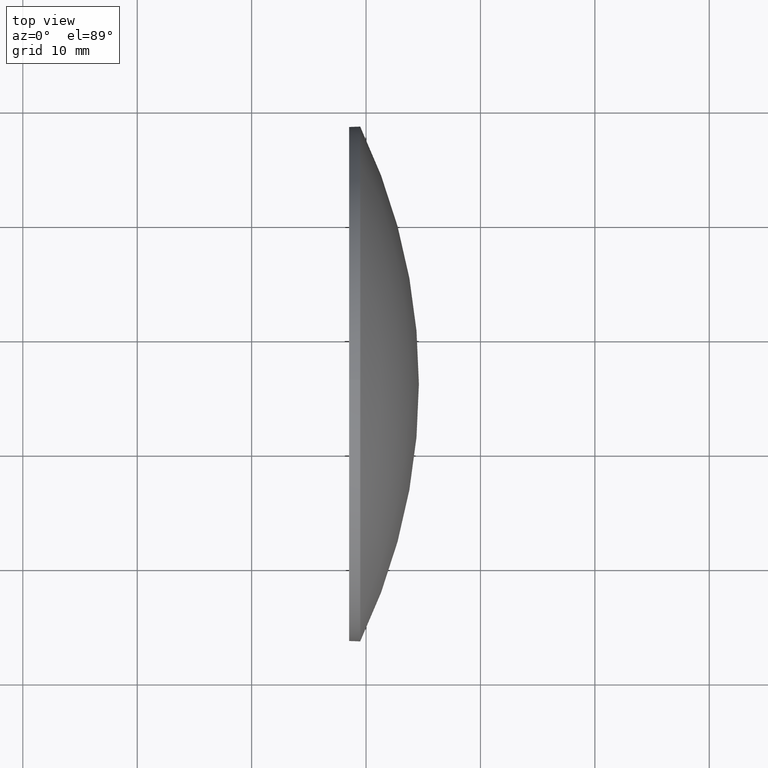
[diagram: clean part render]
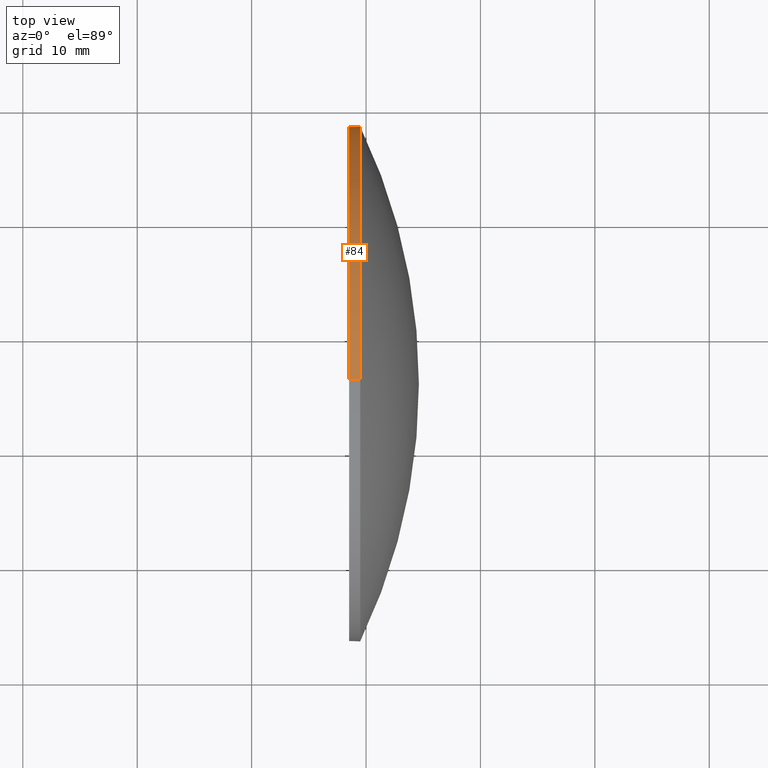
[diagram: same view with one face highlighted and labeled with its STEP entity id]
A machine part, top view. The second image highlights one B-rep face of the part: STEP entity #84.
In plain terms, the highlighted cylindrical surface (partial cylindrical patch) has radius 22.5 mm, axis along (-1, -0, -0).
Its self-contained STEP definition (entity closure, byte-faithful):
#2 = CARTESIAN_POINT ( 'NONE',  ( 548.5191482803511500, 55.90797584289919100, 0.0000000000000000000 ) ) ;
#3 = LINE ( 'NONE', #85, #114 ) ;
#4 = DIRECTION ( 'NONE',  ( -1.000000000000000000, -0.0000000000000000000, -0.0000000000000000000 ) ) ;
#5 = DIRECTION ( 'NONE',  ( 0.0000000000000000000, 0.0000000000000000000, 1.000000000000000000 ) ) ;
#7 = CARTESIAN_POINT ( 'NONE',  ( 548.5191482803511500, 55.90797584289919100, 22.49999999999999300 ) ) ;
#17 = CARTESIAN_POINT ( 'NONE',  ( 543.8709406530288100, 55.90797584289919100, 22.49999999999999300 ) ) ;
#21 = CARTESIAN_POINT ( 'NONE',  ( 549.4891482803511700, 55.90797584289919100, 22.49999999999999300 ) ) ;
#23 = EDGE_LOOP ( 'NONE', ( #69, #163, #118, #72, #135 ) ) ;
#28 = VERTEX_POINT ( 'NONE', #127 ) ;
#36 = CARTESIAN_POINT ( 'NONE',  ( 548.5191482803511500, 55.90797584289919100, -22.49999999999999300 ) ) ;
#46 = CYLINDRICAL_SURFACE ( 'NONE', #107, 22.49999999999999300 ) ;
#53 = DIRECTION ( 'NONE',  ( 0.0000000000000000000, 0.0000000000000000000, 1.000000000000000000 ) ) ;
#58 = EDGE_CURVE ( 'NONE', #28, #71, #3, .T. ) ;
#61 = FACE_OUTER_BOUND ( 'NONE', #23, .T. ) ;
#62 = DIRECTION ( 'NONE',  ( -1.000000000000000000, -0.0000000000000000000, -0.0000000000000000000 ) ) ;
#65 = CARTESIAN_POINT ( 'NONE',  ( 549.4891482803511700, 55.90797584289919100, 0.0000000000000000000 ) ) ;
#69 = ORIENTED_EDGE ( 'NONE', *, *, #177, .T. ) ;
#71 = VERTEX_POINT ( 'NONE', #36 ) ;
#72 = ORIENTED_EDGE ( 'NONE', *, *, #80, .F. ) ;
#73 = EDGE_CURVE ( 'NONE', #166, #71, #87, .T. ) ;
#74 = AXIS2_PLACEMENT_3D ( 'NONE', #2, #139, #168 ) ;
#75 = CIRCLE ( 'NONE', #104, 22.49999999999999300 ) ;
#80 = EDGE_CURVE ( 'NONE', #95, #166, #81, .T. ) ;
#81 = LINE ( 'NONE', #17, #125 ) ;
#84 = ADVANCED_FACE ( 'NONE', ( #61 ), #46, .T. ) ;
#85 = CARTESIAN_POINT ( 'NONE',  ( 543.8709406530288100, 55.90797584289919100, -22.49999999999999300 ) ) ;
#87 = CIRCLE ( 'NONE', #74, 22.49999999999999300 ) ;
#94 = CARTESIAN_POINT ( 'NONE',  ( 549.4891482803511700, 78.40797584289916200, 0.0000000000000000000 ) ) ;
#95 = VERTEX_POINT ( 'NONE', #21 ) ;
#104 = AXIS2_PLACEMENT_3D ( 'NONE', #142, #159, #53 ) ;
#107 = AXIS2_PLACEMENT_3D ( 'NONE', #184, #138, #186 ) ;
#112 = VERTEX_POINT ( 'NONE', #94 ) ;
#114 = VECTOR ( 'NONE', #4, 1000.000000000000000 ) ;
#118 = ORIENTED_EDGE ( 'NONE', *, *, #73, .F. ) ;
#125 = VECTOR ( 'NONE', #62, 1000.000000000000000 ) ;
#127 = CARTESIAN_POINT ( 'NONE',  ( 549.4891482803511700, 55.90797584289919100, -22.49999999999999300 ) ) ;
#135 = ORIENTED_EDGE ( 'NONE', *, *, #145, .T. ) ;
#138 = DIRECTION ( 'NONE',  ( -1.000000000000000000, -0.0000000000000000000, -0.0000000000000000000 ) ) ;
#139 = DIRECTION ( 'NONE',  ( -1.000000000000000000, -0.0000000000000000000, -0.0000000000000000000 ) ) ;
#142 = CARTESIAN_POINT ( 'NONE',  ( 549.4891482803511700, 55.90797584289919100, 0.0000000000000000000 ) ) ;
#145 = EDGE_CURVE ( 'NONE', #95, #112, #75, .T. ) ;
#147 = CIRCLE ( 'NONE', #179, 22.49999999999999300 ) ;
#159 = DIRECTION ( 'NONE',  ( -1.000000000000000000, -0.0000000000000000000, -0.0000000000000000000 ) ) ;
#163 = ORIENTED_EDGE ( 'NONE', *, *, #58, .T. ) ;
#166 = VERTEX_POINT ( 'NONE', #7 ) ;
#168 = DIRECTION ( 'NONE',  ( 0.0000000000000000000, 0.0000000000000000000, 1.000000000000000000 ) ) ;
#172 = DIRECTION ( 'NONE',  ( -1.000000000000000000, -0.0000000000000000000, -0.0000000000000000000 ) ) ;
#177 = EDGE_CURVE ( 'NONE', #112, #28, #147, .T. ) ;
#179 = AXIS2_PLACEMENT_3D ( 'NONE', #65, #172, #5 ) ;
#184 = CARTESIAN_POINT ( 'NONE',  ( 543.8709406530288100, 55.90797584289919100, 0.0000000000000000000 ) ) ;
#186 = DIRECTION ( 'NONE',  ( 0.0000000000000000000, 0.0000000000000000000, 1.000000000000000000 ) ) ;